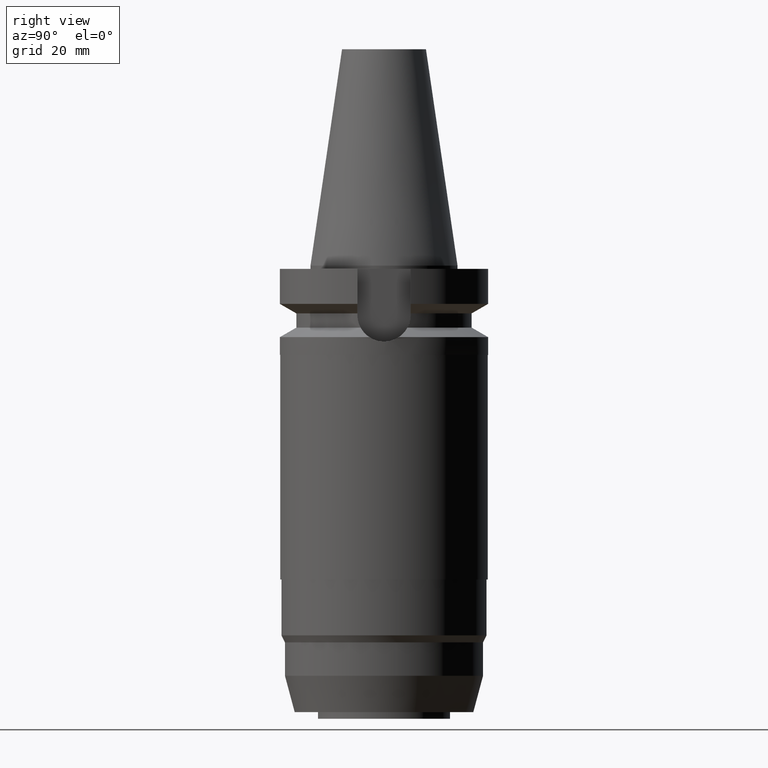
[diagram: clean part render]
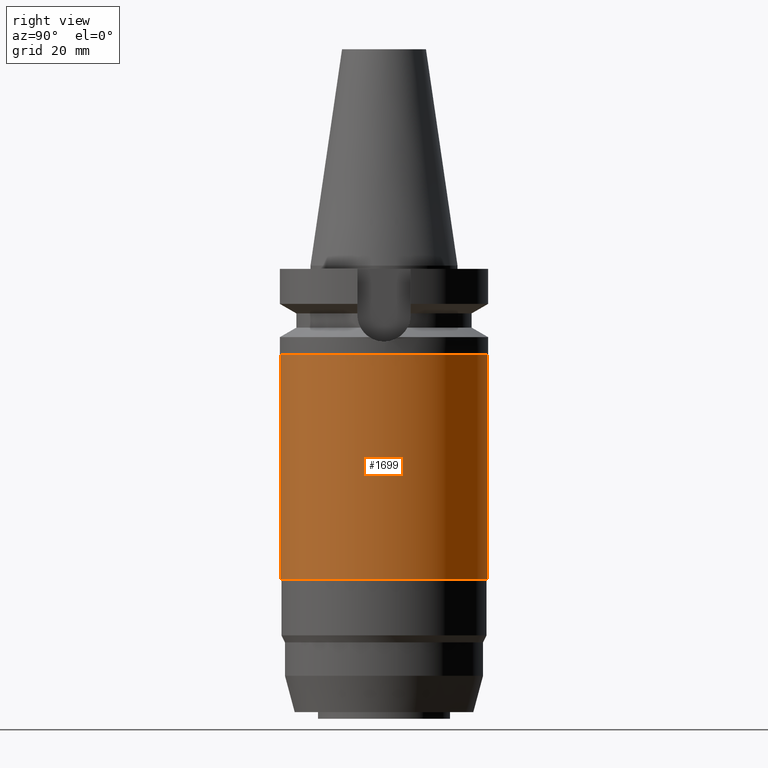
[diagram: same view with one face highlighted and labeled with its STEP entity id]
A machine part, right view. The second image highlights one B-rep face of the part: STEP entity #1699.
In plain terms, the highlighted cylindrical surface (partial cylindrical patch) has radius 31.35 mm, axis along (0, 0, -1).
Its self-contained STEP definition (entity closure, byte-faithful):
#650=CARTESIAN_POINT('',(0.E0,2.149500061863E-14,-2.7E1));
#651=DIRECTION('',(0.E0,0.E0,-1.E0));
#652=DIRECTION('',(0.E0,1.E0,0.E0));
#653=AXIS2_PLACEMENT_3D('',#650,#651,#652);
#658=DIRECTION('',(0.E0,0.E0,-1.E0));
#659=VECTOR('',#658,6.79E1);
#660=CARTESIAN_POINT('',(0.E0,-3.135E1,-2.7E1));
#661=LINE('',#660,#659);
#665=DIRECTION('',(0.E0,0.E0,-1.E0));
#666=VECTOR('',#665,6.79E1);
#667=CARTESIAN_POINT('',(0.E0,3.135E1,-2.7E1));
#668=LINE('',#667,#666);
#672=CARTESIAN_POINT('',(0.E0,2.149500061863E-14,-9.49E1));
#673=DIRECTION('',(0.E0,0.E0,1.E0));
#674=DIRECTION('',(0.E0,-1.E0,0.E0));
#675=AXIS2_PLACEMENT_3D('',#672,#673,#674);
#1136=CARTESIAN_POINT('',(0.E0,-3.135E1,-9.49E1));
#1137=CARTESIAN_POINT('',(0.E0,3.135E1,-9.49E1));
#1138=VERTEX_POINT('',#1136);
#1139=VERTEX_POINT('',#1137);
#1140=CARTESIAN_POINT('',(0.E0,3.135E1,-2.7E1));
#1141=VERTEX_POINT('',#1140);
#1142=CARTESIAN_POINT('',(0.E0,-3.135E1,-2.7E1));
#1143=VERTEX_POINT('',#1142);
#1687=CARTESIAN_POINT('',(0.E0,2.149500061863E-14,7.552E1));
#1688=DIRECTION('',(0.E0,0.E0,-1.E0));
#1689=DIRECTION('',(0.E0,-1.E0,0.E0));
#1690=AXIS2_PLACEMENT_3D('',#1687,#1688,#1689);
#1691=CYLINDRICAL_SURFACE('',#1690,3.135E1);
#1692=ORIENTED_EDGE('',*,*,#1677,.T.);
#1694=ORIENTED_EDGE('',*,*,#1693,.F.);
#1695=ORIENTED_EDGE('',*,*,#1680,.F.);
#1696=ORIENTED_EDGE('',*,*,#1667,.F.);
#1697=EDGE_LOOP('',(#1692,#1694,#1695,#1696));
#1698=FACE_OUTER_BOUND('',#1697,.F.);
#654=CIRCLE('',#653,3.135E1);
#676=CIRCLE('',#675,3.135E1);
#1667=EDGE_CURVE('',#1141,#1143,#654,.T.);
#1677=EDGE_CURVE('',#1141,#1139,#668,.T.);
#1680=EDGE_CURVE('',#1143,#1138,#661,.T.);
#1693=EDGE_CURVE('',#1138,#1139,#676,.T.);
#1699=ADVANCED_FACE('',(#1698),#1691,.T.);